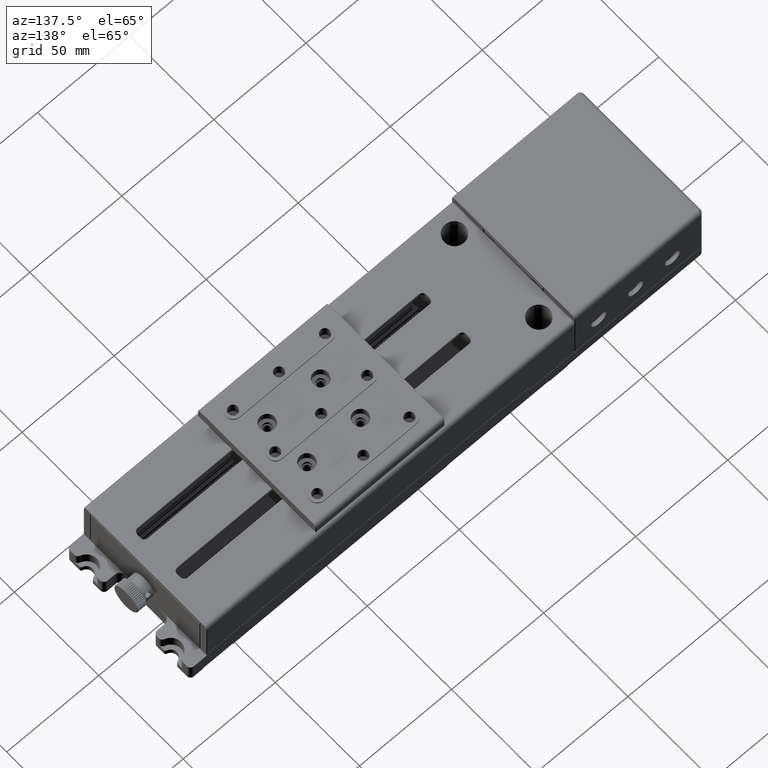
[diagram: clean part render]
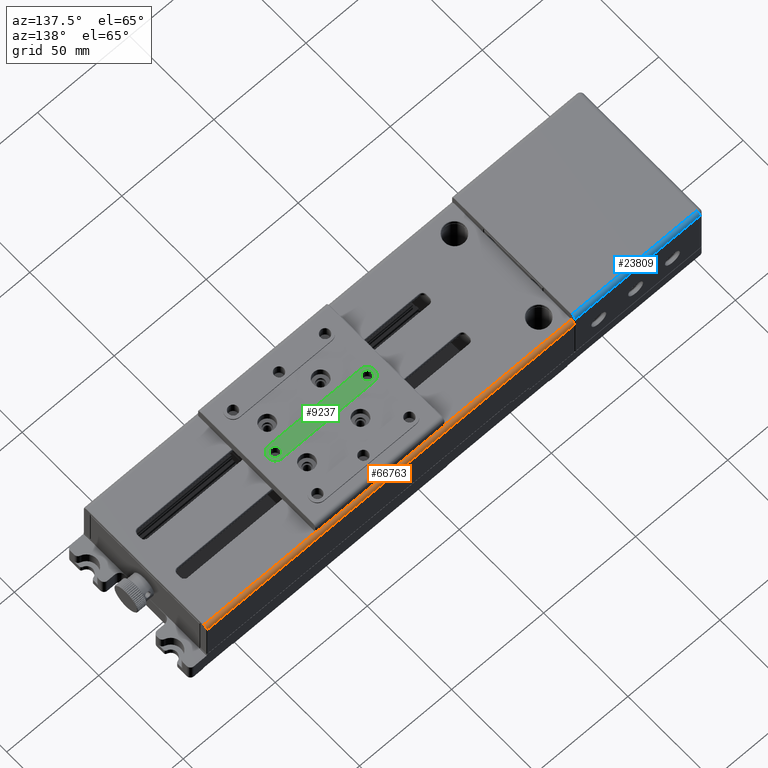
[diagram: same view with three faces highlighted in distinct colors, each labeled with its STEP entity id]
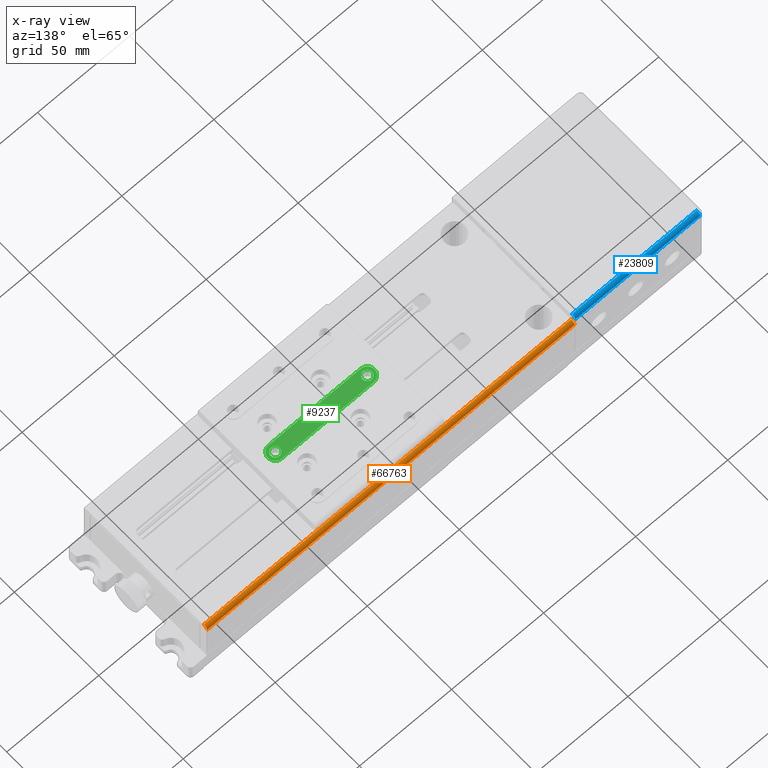
[diagram: x-ray of the same camera — body ghosted, the three highlighted faces saturated]
A machine part, auxiliary view with three faces highlighted in distinct colors.
The next image is the same camera in x-ray (body ghosted, the three faces saturated) — at least one of them is partly hidden behind the body in this view.
Their STEP definitions:

[orange] entity #66763 — the highlighted cylindrical surface (edge-blend (fillet) strip) has radius 2 mm, axis along (1, -0, 0).
#3222 = DIRECTION ( 'NONE',  ( -1.000000000000000000, 2.220446049250315053E-16, 0.000000000000000000 ) ) ;
#9197 = VERTEX_POINT ( 'NONE', #24548 ) ;
#14853 = AXIS2_PLACEMENT_3D ( 'NONE', #51268, #29998, #23879 ) ;
#19478 = ORIENTED_EDGE ( 'NONE', *, *, #68249, .F. ) ;
#20984 = DIRECTION ( 'NONE',  ( 1.000000000000000000, -2.220446049250315053E-16, 0.000000000000000000 ) ) ;
#23437 = VECTOR ( 'NONE', #3222, 1000.000000000000000 ) ;
#23879 = DIRECTION ( 'NONE',  ( 0.000000000000000000, 0.000000000000000000, -1.000000000000000000 ) ) ;
#24548 = CARTESIAN_POINT ( 'NONE',  ( 116.3747400185976062, 25.53080254974720020, 30.00000000000000000 ) ) ;
#25296 = EDGE_CURVE ( 'NONE', #9197, #45546, #63818, .T. ) ;
#26200 = DIRECTION ( 'NONE',  ( 0.000000000000000000, 0.000000000000000000, 1.000000000000000000 ) ) ;
#27577 = CIRCLE ( 'NONE', #14853, 1.999999999999998224 ) ;
#27717 = ORIENTED_EDGE ( 'NONE', *, *, #25296, .F. ) ;
#28510 = DIRECTION ( 'NONE',  ( 1.000000000000000000, -2.220446049250315053E-16, 0.000000000000000000 ) ) ;
#28811 = CARTESIAN_POINT ( 'NONE',  ( 116.3747400185976062, 27.53080254974720020, 28.00000000000000000 ) ) ;
#29998 = DIRECTION ( 'NONE',  ( 1.000000000000000000, -2.220446049250315053E-16, 0.000000000000000000 ) ) ;
#30369 = CIRCLE ( 'NONE', #70708, 1.999999999999998224 ) ;
#32323 = CARTESIAN_POINT ( 'NONE',  ( 116.3747400185976062, 25.53080254974720020, 28.00000000000000000 ) ) ;
#37715 = CARTESIAN_POINT ( 'NONE',  ( -83.22525998140230286, 25.53080254974725349, 30.00000000000000000 ) ) ;
#38371 = EDGE_CURVE ( 'NONE', #9197, #71254, #30369, .T. ) ;
#45546 = VERTEX_POINT ( 'NONE', #37715 ) ;
#47383 = VECTOR ( 'NONE', #28510, 1000.000000000000000 ) ;
#47666 = DIRECTION ( 'NONE',  ( 0.000000000000000000, 0.000000000000000000, -1.000000000000000000 ) ) ;
#50678 = CARTESIAN_POINT ( 'NONE',  ( -83.22525998140230286, 27.53080254974724994, 28.00000000000000000 ) ) ;
#51107 = EDGE_CURVE ( 'NONE', #68780, #45546, #27577, .T. ) ;
#51268 = CARTESIAN_POINT ( 'NONE',  ( -83.22525998140230286, 25.53080254974725349, 28.00000000000000000 ) ) ;
#53426 = FACE_OUTER_BOUND ( 'NONE', #68373, .T. ) ;
#53785 = CARTESIAN_POINT ( 'NONE',  ( 116.5747400185975948, 25.53080254974720020, 28.00000000000000000 ) ) ;
#54137 = CYLINDRICAL_SURFACE ( 'NONE', #64523, 1.999999999999998224 ) ;
#55910 = CARTESIAN_POINT ( 'NONE',  ( 116.5747400185975948, 27.53080254974720020, 28.00000000000000000 ) ) ;
#61051 = ORIENTED_EDGE ( 'NONE', *, *, #51107, .T. ) ;
#62876 = ORIENTED_EDGE ( 'NONE', *, *, #38371, .T. ) ;
#63460 = CARTESIAN_POINT ( 'NONE',  ( 116.5747400185975948, 25.53080254974720020, 30.00000000000000000 ) ) ;
#63818 = LINE ( 'NONE', #63460, #23437 ) ;
#64523 = AXIS2_PLACEMENT_3D ( 'NONE', #53785, #20984, #47666 ) ;
#66385 = LINE ( 'NONE', #55910, #47383 ) ;
#66763 = ADVANCED_FACE ( 'NONE', ( #53426 ), #54137, .T. ) ;
#68249 = EDGE_CURVE ( 'NONE', #68780, #71254, #66385, .T. ) ;
#68373 = EDGE_LOOP ( 'NONE', ( #19478, #61051, #27717, #62876 ) ) ;
#68484 = DIRECTION ( 'NONE',  ( -1.000000000000000000, 2.220446049250315053E-16, 0.000000000000000000 ) ) ;
#68780 = VERTEX_POINT ( 'NONE', #50678 ) ;
#70708 = AXIS2_PLACEMENT_3D ( 'NONE', #32323, #68484, #26200 ) ;
#71254 = VERTEX_POINT ( 'NONE', #28811 ) ;

[blue] entity #23809 — the highlighted cylindrical surface (edge-blend (fillet) strip) has radius 2 mm, axis along (1, -0, 0).
#1492 = AXIS2_PLACEMENT_3D ( 'NONE', #23538, #40472, #11281 ) ;
#4233 = CARTESIAN_POINT ( 'NONE',  ( -151.4252599814024904, 25.53080254974725349, 32.50000000000000000 ) ) ;
#7973 = CARTESIAN_POINT ( 'NONE',  ( -83.62525998140229433, 25.53080254974720020, 34.50000000000000000 ) ) ;
#10270 = EDGE_CURVE ( 'NONE', #51106, #34586, #48567, .T. ) ;
#10488 = VERTEX_POINT ( 'NONE', #25638 ) ;
#11281 = DIRECTION ( 'NONE',  ( 0.000000000000000000, 0.000000000000000000, -1.000000000000000000 ) ) ;
#11835 = CARTESIAN_POINT ( 'NONE',  ( -83.62525998140229433, 27.53080254974724994, 32.50000000000000000 ) ) ;
#12177 = AXIS2_PLACEMENT_3D ( 'NONE', #4233, #30937, #65184 ) ;
#12276 = DIRECTION ( 'NONE',  ( -1.000000000000000000, 2.220446049250315053E-16, 0.000000000000000000 ) ) ;
#13264 = ORIENTED_EDGE ( 'NONE', *, *, #34125, .F. ) ;
#13550 = VERTEX_POINT ( 'NONE', #52515 ) ;
#14890 = CARTESIAN_POINT ( 'NONE',  ( -83.42525998140230570, 27.53080254974724994, 32.50000000000000000 ) ) ;
#17381 = AXIS2_PLACEMENT_3D ( 'NONE', #61703, #12276, #67476 ) ;
#23538 = CARTESIAN_POINT ( 'NONE',  ( -83.42525998140230570, 25.53080254974720020, 32.50000000000000000 ) ) ;
#23809 = ADVANCED_FACE ( 'NONE', ( #55305 ), #55993, .T. ) ;
#24463 = ORIENTED_EDGE ( 'NONE', *, *, #62145, .T. ) ;
#25638 = CARTESIAN_POINT ( 'NONE',  ( -151.4252599814024904, 27.53080254974724994, 32.50000000000000000 ) ) ;
#30937 = DIRECTION ( 'NONE',  ( 1.000000000000000000, -2.220446049250315053E-16, 0.000000000000000000 ) ) ;
#34125 = EDGE_CURVE ( 'NONE', #51106, #13550, #63963, .T. ) ;
#34586 = VERTEX_POINT ( 'NONE', #11835 ) ;
#38043 = EDGE_CURVE ( 'NONE', #10488, #34586, #58569, .T. ) ;
#40472 = DIRECTION ( 'NONE',  ( 1.000000000000000000, -2.220446049250315053E-16, 0.000000000000000000 ) ) ;
#42342 = DIRECTION ( 'NONE',  ( 1.000000000000000000, -2.220446049250315053E-16, 0.000000000000000000 ) ) ;
#44764 = VECTOR ( 'NONE', #57844, 1000.000000000000000 ) ;
#48567 = CIRCLE ( 'NONE', #17381, 2.000000000000001776 ) ;
#49102 = CIRCLE ( 'NONE', #12177, 2.000000000000001776 ) ;
#51106 = VERTEX_POINT ( 'NONE', #7973 ) ;
#52515 = CARTESIAN_POINT ( 'NONE',  ( -151.4252599814024904, 25.53080254974725349, 34.50000000000000000 ) ) ;
#53417 = ORIENTED_EDGE ( 'NONE', *, *, #10270, .T. ) ;
#55305 = FACE_OUTER_BOUND ( 'NONE', #60757, .T. ) ;
#55993 = CYLINDRICAL_SURFACE ( 'NONE', #1492, 2.000000000000001776 ) ;
#57844 = DIRECTION ( 'NONE',  ( -1.000000000000000000, 2.220446049250315053E-16, 0.000000000000000000 ) ) ;
#58569 = LINE ( 'NONE', #14890, #63732 ) ;
#60757 = EDGE_LOOP ( 'NONE', ( #13264, #53417, #65398, #24463 ) ) ;
#61703 = CARTESIAN_POINT ( 'NONE',  ( -83.62525998140229433, 25.53080254974720020, 32.50000000000000000 ) ) ;
#62145 = EDGE_CURVE ( 'NONE', #10488, #13550, #49102, .T. ) ;
#63246 = CARTESIAN_POINT ( 'NONE',  ( -83.42525998140230570, 25.53080254974720020, 34.50000000000000000 ) ) ;
#63732 = VECTOR ( 'NONE', #42342, 1000.000000000000000 ) ;
#63963 = LINE ( 'NONE', #63246, #44764 ) ;
#65184 = DIRECTION ( 'NONE',  ( 0.000000000000000000, 0.000000000000000000, -1.000000000000000000 ) ) ;
#65398 = ORIENTED_EDGE ( 'NONE', *, *, #38043, .F. ) ;
#67476 = DIRECTION ( 'NONE',  ( 0.000000000000000000, 0.000000000000000000, 1.000000000000000000 ) ) ;

[green] entity #9237 — the highlighted planar face has unit normal (-0, -0, 1).
#638 = CARTESIAN_POINT ( 'NONE',  ( 20.92131916724334673, -8.969197450252730519, 37.00000000000000000 ) ) ;
#691 = DIRECTION ( 'NONE',  ( -4.336808689942017736E-16, -1.000000000000000000, 0.000000000000000000 ) ) ;
#1480 = CIRCLE ( 'NONE', #45256, 2.500000000000000444 ) ;
#2467 = CARTESIAN_POINT ( 'NONE',  ( -4.078680832756634622, -4.969197450252719861, 37.00000000000000000 ) ) ;
#3403 = DIRECTION ( 'NONE',  ( 1.000000000000000000, -2.299747693866395409E-16, 5.551115123125779621E-17 ) ) ;
#4305 = FACE_BOUND ( 'NONE', #24122, .T. ) ;
#6076 = CARTESIAN_POINT ( 'NONE',  ( -4.078680832756644392, -8.969197450252709203, 37.00000000000000000 ) ) ;
#6250 = EDGE_CURVE ( 'NONE', #41118, #64066, #54429, .T. ) ;
#7334 = VERTEX_POINT ( 'NONE', #13228 ) ;
#8853 = DIRECTION ( 'NONE',  ( 0.000000000000000000, -1.000000000000000000, 0.000000000000000000 ) ) ;
#9237 = ADVANCED_FACE ( 'NONE', ( #26332, #4305, #20927, #25972 ), #58434, .T. ) ;
#10639 = EDGE_CURVE ( 'NONE', #10737, #23074, #32446, .T. ) ;
#10737 = VERTEX_POINT ( 'NONE', #2467 ) ;
#11236 = EDGE_LOOP ( 'NONE', ( #34340, #37929 ) ) ;
#12080 = AXIS2_PLACEMENT_3D ( 'NONE', #21277, #58790, #26701 ) ;
#13096 = AXIS2_PLACEMENT_3D ( 'NONE', #45723, #63369, #57243 ) ;
#13228 = CARTESIAN_POINT ( 'NONE',  ( 45.92131916724340357, -6.469197450252740289, 37.00000000000000000 ) ) ;
#13343 = ORIENTED_EDGE ( 'NONE', *, *, #46518, .F. ) ;
#13773 = DIRECTION ( 'NONE',  ( -3.469446951953613696E-16, -1.000000000000000000, 0.000000000000000000 ) ) ;
#15365 = CARTESIAN_POINT ( 'NONE',  ( 20.92131916724334673, -6.469197450252740289, 37.00000000000000000 ) ) ;
#15524 = DIRECTION ( 'NONE',  ( -1.000000000000000000, 5.075305255429290705E-16, -5.551115123125779621E-17 ) ) ;
#19212 = AXIS2_PLACEMENT_3D ( 'NONE', #69460, #70176, #53217 ) ;
#20783 = CARTESIAN_POINT ( 'NONE',  ( 45.92131916724340357, -8.969197450252730519, 37.00000000000000000 ) ) ;
#20927 = FACE_BOUND ( 'NONE', #23706, .T. ) ;
#21277 = CARTESIAN_POINT ( 'NONE',  ( 55.92131916724339646, 26.03080254974724994, 37.00000000000000000 ) ) ;
#22306 = DIRECTION ( 'NONE',  ( -5.551115123125779621E-17, 0.000000000000000000, 1.000000000000000000 ) ) ;
#23074 = VERTEX_POINT ( 'NONE', #47949 ) ;
#23706 = EDGE_LOOP ( 'NONE', ( #13343, #56795 ) ) ;
#23919 = DIRECTION ( 'NONE',  ( -5.551115123125779621E-17, 1.925929944387244885E-32, 1.000000000000000000 ) ) ;
#23958 = CARTESIAN_POINT ( 'NONE',  ( 20.92131916724334673, -11.46919745025271986, 37.00000000000000000 ) ) ;
#24122 = EDGE_LOOP ( 'NONE', ( #65999, #52640 ) ) ;
#24618 = DIRECTION ( 'NONE',  ( -5.551115123125779621E-17, 1.925929944387244885E-32, 1.000000000000000000 ) ) ;
#25779 = EDGE_CURVE ( 'NONE', #25820, #7334, #33849, .T. ) ;
#25820 = VERTEX_POINT ( 'NONE', #57606 ) ;
#25972 = FACE_OUTER_BOUND ( 'NONE', #35626, .T. ) ;
#26030 = CARTESIAN_POINT ( 'NONE',  ( 45.92131916724340357, -4.969197450252739401, 37.00000000000000000 ) ) ;
#26332 = FACE_BOUND ( 'NONE', #11236, .T. ) ;
#26701 = DIRECTION ( 'NONE',  ( 1.000000000000000000, 0.000000000000000000, 5.551115123125779621E-17 ) ) ;
#26756 = DIRECTION ( 'NONE',  ( 0.000000000000000000, -1.000000000000000000, 0.000000000000000000 ) ) ;
#28110 = DIRECTION ( 'NONE',  ( -5.551115123125779621E-17, 2.407412430484044816E-32, 1.000000000000000000 ) ) ;
#32099 = CARTESIAN_POINT ( 'NONE',  ( 45.92131916724340357, -12.96919745025271986, 37.00000000000000000 ) ) ;
#32140 = LINE ( 'NONE', #26030, #55318 ) ;
#32446 = CIRCLE ( 'NONE', #45099, 4.000000000000000000 ) ;
#33849 = CIRCLE ( 'NONE', #13096, 2.500000000000000444 ) ;
#34340 = ORIENTED_EDGE ( 'NONE', *, *, #25779, .F. ) ;
#35433 = DIRECTION ( 'NONE',  ( -3.469446951953613696E-16, -1.000000000000000000, 0.000000000000000000 ) ) ;
#35626 = EDGE_LOOP ( 'NONE', ( #68737, #50129, #50027, #69171 ) ) ;
#35967 = DIRECTION ( 'NONE',  ( 0.000000000000000000, -1.000000000000000000, 0.000000000000000000 ) ) ;
#36462 = VERTEX_POINT ( 'NONE', #63689 ) ;
#37041 = CARTESIAN_POINT ( 'NONE',  ( 20.92131916724334673, -8.969197450252730519, 37.00000000000000000 ) ) ;
#37647 = EDGE_CURVE ( 'NONE', #7334, #25820, #48716, .T. ) ;
#37929 = ORIENTED_EDGE ( 'NONE', *, *, #37647, .F. ) ;
#41118 = VERTEX_POINT ( 'NONE', #15365 ) ;
#41209 = CARTESIAN_POINT ( 'NONE',  ( -4.078680832756644392, -8.969197450252709203, 37.00000000000000000 ) ) ;
#41282 = CARTESIAN_POINT ( 'NONE',  ( 45.92131916724340357, -12.96919745025271986, 37.00000000000000000 ) ) ;
#44998 = CARTESIAN_POINT ( 'NONE',  ( -4.078680832756639951, -6.469197450252719861, 37.00000000000000000 ) ) ;
#45099 = AXIS2_PLACEMENT_3D ( 'NONE', #6076, #28110, #691 ) ;
#45256 = AXIS2_PLACEMENT_3D ( 'NONE', #41209, #23919, #13773 ) ;
#45723 = CARTESIAN_POINT ( 'NONE',  ( 45.92131916724340357, -8.969197450252730519, 37.00000000000000000 ) ) ;
#46518 = EDGE_CURVE ( 'NONE', #64066, #41118, #62203, .T. ) ;
#47949 = CARTESIAN_POINT ( 'NONE',  ( -4.078680832756644392, -12.96919745025270210, 37.00000000000000000 ) ) ;
#48716 = CIRCLE ( 'NONE', #49892, 2.500000000000000444 ) ;
#49892 = AXIS2_PLACEMENT_3D ( 'NONE', #20783, #58291, #8853 ) ;
#50027 = ORIENTED_EDGE ( 'NONE', *, *, #66778, .T. ) ;
#50071 = CARTESIAN_POINT ( 'NONE',  ( -4.078680832756644392, -11.46919745025270032, 37.00000000000000000 ) ) ;
#50129 = ORIENTED_EDGE ( 'NONE', *, *, #62637, .T. ) ;
#50316 = CIRCLE ( 'NONE', #19212, 4.000000000000000000 ) ;
#51079 = VECTOR ( 'NONE', #3403, 1000.000000000000000 ) ;
#51786 = VERTEX_POINT ( 'NONE', #44998 ) ;
#52457 = LINE ( 'NONE', #41282, #51079 ) ;
#52640 = ORIENTED_EDGE ( 'NONE', *, *, #60808, .F. ) ;
#53217 = DIRECTION ( 'NONE',  ( 0.000000000000000000, -1.000000000000000000, 0.000000000000000000 ) ) ;
#54429 = CIRCLE ( 'NONE', #56716, 2.500000000000000444 ) ;
#54619 = EDGE_CURVE ( 'NONE', #57532, #51786, #1480, .T. ) ;
#55318 = VECTOR ( 'NONE', #15524, 1000.000000000000000 ) ;
#56716 = AXIS2_PLACEMENT_3D ( 'NONE', #37041, #63005, #35967 ) ;
#56795 = ORIENTED_EDGE ( 'NONE', *, *, #6250, .F. ) ;
#57243 = DIRECTION ( 'NONE',  ( 0.000000000000000000, -1.000000000000000000, 0.000000000000000000 ) ) ;
#57532 = VERTEX_POINT ( 'NONE', #50071 ) ;
#57606 = CARTESIAN_POINT ( 'NONE',  ( 45.92131916724340357, -11.46919745025271986, 37.00000000000000000 ) ) ;
#58144 = CARTESIAN_POINT ( 'NONE',  ( -4.078680832756644392, -8.969197450252709203, 37.00000000000000000 ) ) ;
#58291 = DIRECTION ( 'NONE',  ( -5.551115123125779621E-17, 0.000000000000000000, 1.000000000000000000 ) ) ;
#58434 = PLANE ( 'NONE',  #12080 ) ;
#58726 = AXIS2_PLACEMENT_3D ( 'NONE', #638, #22306, #26756 ) ;
#58790 = DIRECTION ( 'NONE',  ( -5.551115123125779621E-17, -1.602373713730180011E-31, 1.000000000000000000 ) ) ;
#60396 = VERTEX_POINT ( 'NONE', #32099 ) ;
#60808 = EDGE_CURVE ( 'NONE', #51786, #57532, #64069, .T. ) ;
#62203 = CIRCLE ( 'NONE', #58726, 2.500000000000000444 ) ;
#62637 = EDGE_CURVE ( 'NONE', #60396, #36462, #50316, .T. ) ;
#63005 = DIRECTION ( 'NONE',  ( -5.551115123125779621E-17, 0.000000000000000000, 1.000000000000000000 ) ) ;
#63369 = DIRECTION ( 'NONE',  ( -5.551115123125779621E-17, 0.000000000000000000, 1.000000000000000000 ) ) ;
#63689 = CARTESIAN_POINT ( 'NONE',  ( 45.92131916724340357, -4.969197450252739401, 37.00000000000000000 ) ) ;
#64066 = VERTEX_POINT ( 'NONE', #23958 ) ;
#64069 = CIRCLE ( 'NONE', #70999, 2.500000000000000444 ) ;
#65999 = ORIENTED_EDGE ( 'NONE', *, *, #54619, .F. ) ;
#66778 = EDGE_CURVE ( 'NONE', #36462, #10737, #32140, .T. ) ;
#68737 = ORIENTED_EDGE ( 'NONE', *, *, #68810, .T. ) ;
#68810 = EDGE_CURVE ( 'NONE', #23074, #60396, #52457, .T. ) ;
#69171 = ORIENTED_EDGE ( 'NONE', *, *, #10639, .T. ) ;
#69460 = CARTESIAN_POINT ( 'NONE',  ( 45.92131916724340357, -8.969197450252730519, 37.00000000000000000 ) ) ;
#70176 = DIRECTION ( 'NONE',  ( -5.551115123125779621E-17, 0.000000000000000000, 1.000000000000000000 ) ) ;
#70999 = AXIS2_PLACEMENT_3D ( 'NONE', #58144, #24618, #35433 ) ;